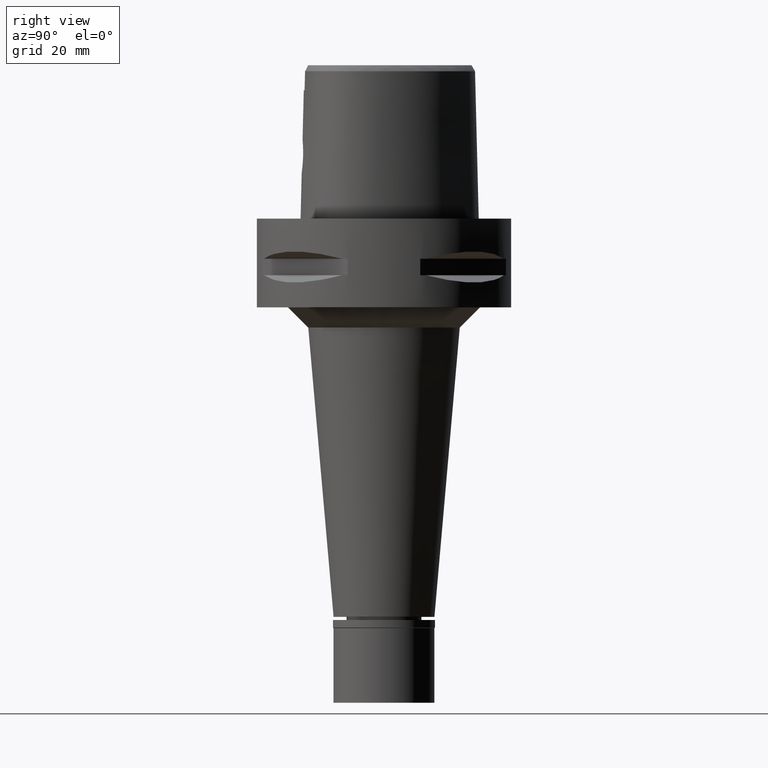
[diagram: clean part render]
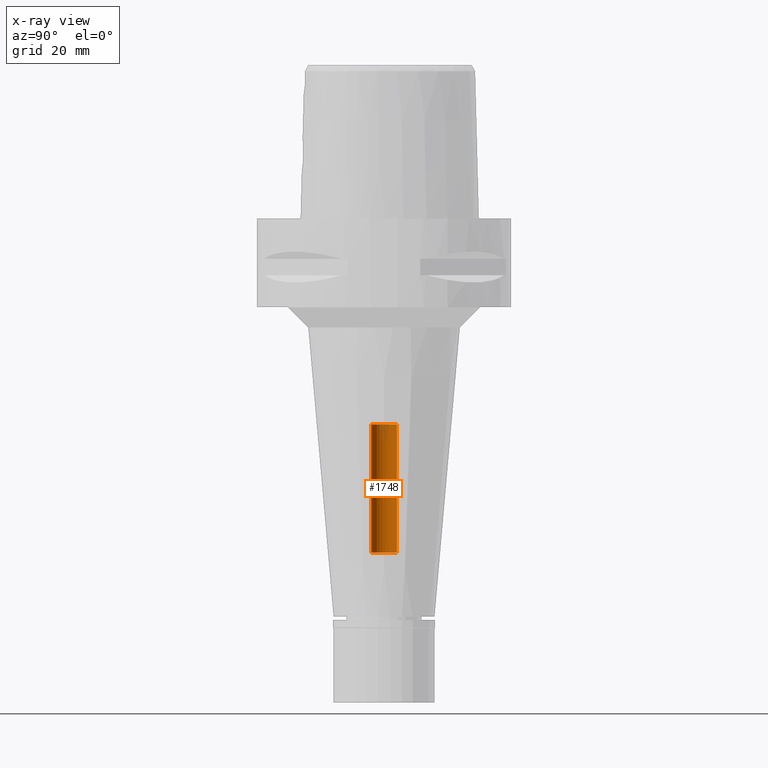
[diagram: x-ray — body ghosted, one internal face saturated and labeled with its STEP entity id]
A machine part, right view, then the same camera in x-ray: the body is ghosted and one INTERNAL B-rep face — a face not visible from any outside direction — is saturated and labeled: STEP entity #1748.
In plain terms, the highlighted cylindrical surface (edge-blend (fillet) strip) has radius 3.2 mm, axis along (0, 0, -1).
Its self-contained STEP definition (entity closure, byte-faithful):
#159 = EDGE_LOOP ( 'NONE', ( #1893, #667, #3974, #1328 ) ) ;
#424 = DIRECTION ( 'NONE',  ( 0.0000000000000000000, 0.0000000000000000000, 1.000000000000000000 ) ) ;
#528 = VECTOR ( 'NONE', #424, 1000.000000000000000 ) ;
#533 = EDGE_CURVE ( 'NONE', #3425, #1600, #1427, .T. ) ;
#543 = DIRECTION ( 'NONE',  ( 0.0000000000000000000, 0.0000000000000000000, -1.000000000000000000 ) ) ;
#667 = ORIENTED_EDGE ( 'NONE', *, *, #533, .F. ) ;
#761 = VERTEX_POINT ( 'NONE', #3948 ) ;
#788 = VERTEX_POINT ( 'NONE', #2341 ) ;
#841 = VECTOR ( 'NONE', #4944, 1000.000000000000000 ) ;
#877 = EDGE_CURVE ( 'NONE', #3425, #788, #3353, .T. ) ;
#881 = DIRECTION ( 'NONE',  ( 0.0000000000000000000, -1.000000000000000000, 0.0000000000000000000 ) ) ;
#893 = CARTESIAN_POINT ( 'NONE',  ( 0.0000000000000000000, 0.0000000000000000000, -51.00000000000000000 ) ) ;
#964 = DIRECTION ( 'NONE',  ( 0.0000000000000000000, -1.000000000000000000, 0.0000000000000000000 ) ) ;
#1328 = ORIENTED_EDGE ( 'NONE', *, *, #2223, .T. ) ;
#1427 = LINE ( 'NONE', #3764, #841 ) ;
#1600 = VERTEX_POINT ( 'NONE', #2727 ) ;
#1727 = DIRECTION ( 'NONE',  ( 0.0000000000000000000, 0.0000000000000000000, -1.000000000000000000 ) ) ;
#1748 = ADVANCED_FACE ( 'NONE', ( #4406 ), #2924, .F. ) ;
#1872 = AXIS2_PLACEMENT_3D ( 'NONE', #893, #2542, #4937 ) ;
#1893 = ORIENTED_EDGE ( 'NONE', *, *, #2415, .T. ) ;
#2223 = EDGE_CURVE ( 'NONE', #788, #761, #3996, .T. ) ;
#2341 = CARTESIAN_POINT ( 'NONE',  ( 0.0000000000000000000, 3.200000000000000178, -82.79999999999999716 ) ) ;
#2415 = EDGE_CURVE ( 'NONE', #761, #1600, #3369, .T. ) ;
#2542 = DIRECTION ( 'NONE',  ( 0.0000000000000000000, 0.0000000000000000000, 1.000000000000000000 ) ) ;
#2727 = CARTESIAN_POINT ( 'NONE',  ( 0.0000000000000000000, -3.200000000000000178, -51.00000000000000000 ) ) ;
#2924 = CYLINDRICAL_SURFACE ( 'NONE', #3772, 3.200000000000000178 ) ;
#3308 = CARTESIAN_POINT ( 'NONE',  ( 0.0000000000000000000, -3.200000000000000178, -82.79999999999999716 ) ) ;
#3353 = CIRCLE ( 'NONE', #4258, 3.200000000000000178 ) ;
#3369 = CIRCLE ( 'NONE', #1872, 3.200000000000000178 ) ;
#3425 = VERTEX_POINT ( 'NONE', #3308 ) ;
#3672 = CARTESIAN_POINT ( 'NONE',  ( 0.0000000000000000000, 0.0000000000000000000, -82.79999999999999716 ) ) ;
#3764 = CARTESIAN_POINT ( 'NONE',  ( 0.0000000000000000000, -3.200000000000000178, -82.79999999999999716 ) ) ;
#3772 = AXIS2_PLACEMENT_3D ( 'NONE', #4054, #1727, #964 ) ;
#3948 = CARTESIAN_POINT ( 'NONE',  ( 0.0000000000000000000, 3.200000000000000178, -51.00000000000000000 ) ) ;
#3974 = ORIENTED_EDGE ( 'NONE', *, *, #877, .T. ) ;
#3996 = LINE ( 'NONE', #4394, #528 ) ;
#4054 = CARTESIAN_POINT ( 'NONE',  ( 0.0000000000000000000, 0.0000000000000000000, 5.689999999999999503 ) ) ;
#4258 = AXIS2_PLACEMENT_3D ( 'NONE', #3672, #543, #881 ) ;
#4394 = CARTESIAN_POINT ( 'NONE',  ( 0.0000000000000000000, 3.200000000000000178, -82.79999999999999716 ) ) ;
#4406 = FACE_OUTER_BOUND ( 'NONE', #159, .T. ) ;
#4937 = DIRECTION ( 'NONE',  ( 0.0000000000000000000, 1.000000000000000000, 0.0000000000000000000 ) ) ;
#4944 = DIRECTION ( 'NONE',  ( 0.0000000000000000000, 0.0000000000000000000, 1.000000000000000000 ) ) ;